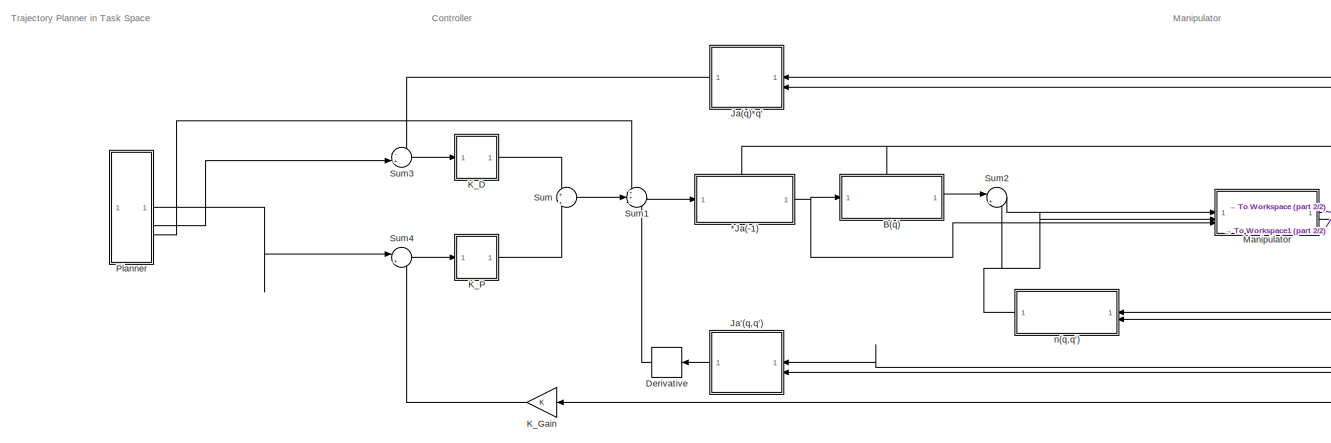
[diagram: root canvas - part 1/2, most of the canvas]
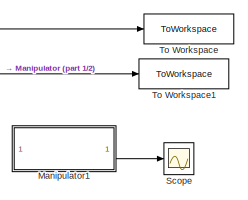
[diagram: root canvas - part 2/2, middle right region]
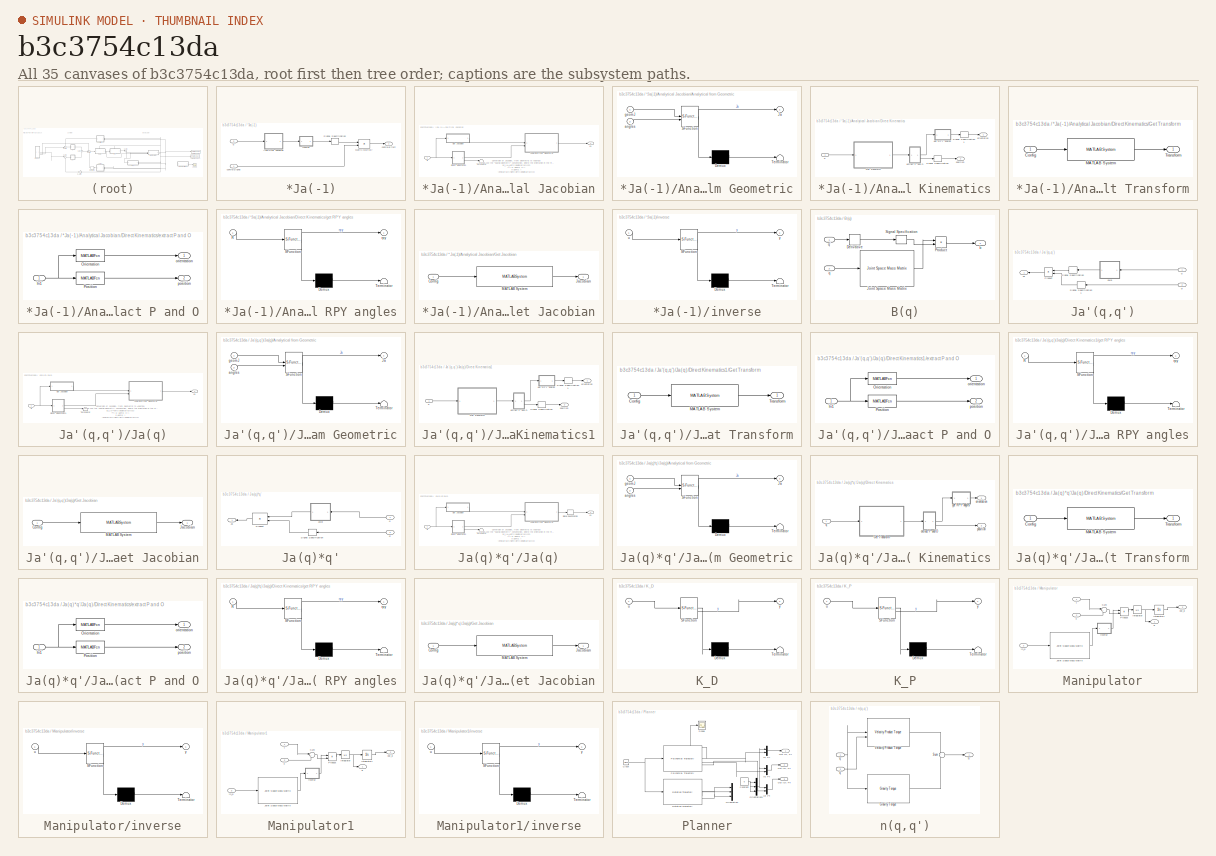
[diagram: thumbnail index - all 35 canvases of the model, root first then tree order]
MODEL slx_b3c3754c13da
KIND model
CONFIG AbsTol = auto
CONFIG EnableMultiTasking = off
CONFIG FixedStep = sampleTime
CONFIG MaxStep = auto
CONFIG MinStep = auto
CONFIG RelTol = 1e-3
CONFIG SampleTimeConstraint = Unconstrained
CONFIG SolverName = FixedStepAuto
CONFIG StartTime = 0.0
CONFIG StopTime = 10.0
BLOCK [SubSystem] *Ja(-1)
  PortSchema = {"entries":[{"content":{"sides":[{"content":{"connectorIds":["In1"]},"type":"ConnectorPlacement.EquallySpacedRectSide","uuid":"6181597d-d95a-4c94-8b0a-1b126e10fdbf"},{"content":{"connectorIds":["Out1"],"side":"RIGHT"},"type":"ConnectorPlacement.EquallySpacedRectSide","uuid":"10cd4102-ac71-40d2-b2d5-351b2662a651"},{"content":{"connectorIds":["In2"],"side":"TOP"},"type":"ConnectorPlacement.EquallySp...<+245ch>
BLOCK [SubSystem] *Ja(-1)/Analytical Jacobian
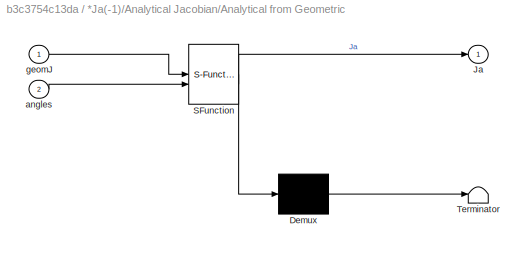
BLOCK [SubSystem] *Ja(-1)/Analytical Jacobian/Analytical from Geometric
  ErrorFcn = Stateflow.Translate.translate
  PermitHierarchicalResolution = ExplicitOnly
  SFBlockType = MATLAB Function
  TreatAsAtomicUnit = on
BLOCK [Demux] *Ja(-1)/Analytical Jacobian/Analytical from Geometric/ Demux 
  Outputs = 1
BLOCK [S-Function] *Ja(-1)/Analytical Jacobian/Analytical from Geometric/ SFunction 
  EnableBusSupport = on
  FunctionName = sf_sfun
  PortCounts = [2 2]
  SFcnIsStateOwnerBlock = off
  SFunctionDeploymentMode = off
  Tag = Stateflow S-Function 5
BLOCK [Terminator] *Ja(-1)/Analytical Jacobian/Analytical from Geometric/ Terminator 
BLOCK [Outport] *Ja(-1)/Analytical Jacobian/Analytical from Geometric/Ja
BLOCK [Inport] *Ja(-1)/Analytical Jacobian/Analytical from Geometric/angles
  Port = 2
BLOCK [Inport] *Ja(-1)/Analytical Jacobian/Analytical from Geometric/geomJ
BLOCK [SubSystem] *Ja(-1)/Analytical Jacobian/Direct Kinematics
BLOCK [SubSystem] *Ja(-1)/Analytical Jacobian/Direct Kinematics/Get Transform
  LibrarySourceBlock = robotmaniplib/Get Transform
BLOCK [Inport] *Ja(-1)/Analytical Jacobian/Direct Kinematics/Get Transform/Config
  PortDimensions = 6
BLOCK [MATLABSystem] *Ja(-1)/Analytical Jacobian/Direct Kinematics/Get Transform/MATLAB System
  MaskDisplay = disp('GetTransformBlock');\nport_label('input',1,'q');\nport_label('output',1,'tform');
  MaskType = robotics.slmanip.internal.block.GetTransformBlock
  SimulateUsing = Code generation
  SourceBodyName = SourceBody
  System = robotics.slmanip.internal.block.GetTransformBlock
  TargetBodyName = TargetBody
  TreeStruct = TreeStruct
BLOCK [Outport] *Ja(-1)/Analytical Jacobian/Direct Kinematics/Get Transform/Transform
  VectorParamsAs1DForOutWhenUnconnected = off
BLOCK [SignalSpecification] *Ja(-1)/Analytical Jacobian/Direct Kinematics/Signal Specification
  Dimensions = [3,1]
BLOCK [SignalSpecification] *Ja(-1)/Analytical Jacobian/Direct Kinematics/Signal Specification1
  Dimensions = [3,1]
BLOCK [SubSystem] *Ja(-1)/Analytical Jacobian/Direct Kinematics/extract P and O
BLOCK [Inport] *Ja(-1)/Analytical Jacobian/Direct Kinematics/extract P and O/In1
  NameLocation = top
BLOCK [MATLABFcn] *Ja(-1)/Analytical Jacobian/Direct Kinematics/extract P and O/Orientation
  MATLABFcn = tform2rotm
  Output1D = off
BLOCK [MATLABFcn] *Ja(-1)/Analytical Jacobian/Direct Kinematics/extract P and O/Position
  MATLABFcn = tform2trvec
BLOCK [Outport] *Ja(-1)/Analytical Jacobian/Direct Kinematics/extract P and O/orientation
  NameLocation = top
BLOCK [Outport] *Ja(-1)/Analytical Jacobian/Direct Kinematics/extract P and O/position
  NameLocation = top
  Port = 2
BLOCK [SubSystem] *Ja(-1)/Analytical Jacobian/Direct Kinematics/get RPY angles
  ErrorFcn = Stateflow.Translate.translate
  PermitHierarchicalResolution = ExplicitOnly
  SFBlockType = MATLAB Function
  TreatAsAtomicUnit = on
BLOCK [Demux] *Ja(-1)/Analytical Jacobian/Direct Kinematics/get RPY angles/ Demux 
  Outputs = 1
BLOCK [S-Function] *Ja(-1)/Analytical Jacobian/Direct Kinematics/get RPY angles/ SFunction 
  EnableBusSupport = on
  FunctionName = sf_sfun
  PortCounts = [1 2]
  SFcnIsStateOwnerBlock = off
  SFunctionDeploymentMode = off
  Tag = Stateflow S-Function 3
BLOCK [Terminator] *Ja(-1)/Analytical Jacobian/Direct Kinematics/get RPY angles/ Terminator 
BLOCK [Inport] *Ja(-1)/Analytical Jacobian/Direct Kinematics/get RPY angles/R
BLOCK [Outport] *Ja(-1)/Analytical Jacobian/Direct Kinematics/get RPY angles/rpy
BLOCK [Outport] *Ja(-1)/Analytical Jacobian/Direct Kinematics/orientation
  NameLocation = top
BLOCK [Outport] *Ja(-1)/Analytical Jacobian/Direct Kinematics/position
  Port = 2
BLOCK [Inport] *Ja(-1)/Analytical Jacobian/Direct Kinematics/q
BLOCK [SubSystem] *Ja(-1)/Analytical Jacobian/Get Jacobian
  LibrarySourceBlock = robotmaniplib/Get Jacobian
BLOCK [Inport] *Ja(-1)/Analytical Jacobian/Get Jacobian/Config
  PortDimensions = 6
BLOCK [Outport] *Ja(-1)/Analytical Jacobian/Get Jacobian/Jacobian
  VectorParamsAs1DForOutWhenUnconnected = off
BLOCK [MATLABSystem] *Ja(-1)/Analytical Jacobian/Get Jacobian/MATLAB System
  EEBodyName = EndEffector
  MaskDisplay = disp('GetJacobianBlock');\nport_label('input',1,'q');\nport_label('output',1,'jacobianMat');
  MaskType = robotics.slmanip.internal.block.GetJacobianBlock
  SimulateUsing = Code generation
  System = robotics.slmanip.internal.block.GetJacobianBlock
  TreeStruct = TreeStruct
BLOCK [Outport] *Ja(-1)/Analytical Jacobian/Ja
BLOCK [Terminator] *Ja(-1)/Analytical Jacobian/Terminator
BLOCK [Inport] *Ja(-1)/Analytical Jacobian/q
BLOCK [Product] *Ja(-1)/Matrix Multiply
  Multiplication = Matrix(*)
BLOCK [SignalSpecification] *Ja(-1)/Signal Specification
  Dimensions = [6,6]
BLOCK [Outport] *Ja(-1)/controlEffort
BLOCK [Inport] *Ja(-1)/controlSignal
BLOCK [SubSystem] *Ja(-1)/inverse
  ErrorFcn = Stateflow.Translate.translate
  PermitHierarchicalResolution = ExplicitOnly
  SFBlockType = MATLAB Function
  TreatAsAtomicUnit = on
BLOCK [Demux] *Ja(-1)/inverse/ Demux 
  Outputs = 1
BLOCK [S-Function] *Ja(-1)/inverse/ SFunction 
  EnableBusSupport = on
  FunctionName = sf_sfun
  PortCounts = [1 2]
  SFcnIsStateOwnerBlock = off
  SFunctionDeploymentMode = off
  Tag = Stateflow S-Function 2
BLOCK [Terminator] *Ja(-1)/inverse/ Terminator 
BLOCK [Inport] *Ja(-1)/inverse/u
BLOCK [Outport] *Ja(-1)/inverse/y
BLOCK [Inport] *Ja(-1)/q
  Port = 2
BLOCK [SubSystem] B(q)
  PortSchema = {"entries":[{"content":{"sides":[{"content":{"connectorIds":["In1"]},"type":"ConnectorPlacement.EquallySpacedRectSide","uuid":"6181597d-d95a-4c94-8b0a-1b126e10fdbf"},{"content":{"connectorIds":["Out1"],"side":"RIGHT"},"type":"ConnectorPlacement.EquallySpacedRectSide","uuid":"10cd4102-ac71-40d2-b2d5-351b2662a651"},{"content":{"connectorIds":["In2"],"side":"TOP"},"type":"ConnectorPlacement.EquallySp...<+245ch>
BLOCK [Derivative] B(q)/Derivative
BLOCK [Reference] B(q)/Joint Space Mass Matrix  REF=robotmaniplib/Joint Space Mass Matrix
  SourceBlock = robotmaniplib/Joint Space Mass Matrix
  SourceType = Joint Space Mass Matrix
BLOCK [Product] B(q)/Product
  Multiplication = Matrix(*)
BLOCK [SignalSpecification] B(q)/Signal Specification
  Dimensions = [6,1]
BLOCK [Outport] B(q)/b
BLOCK [Inport] B(q)/q
  Port = 2
BLOCK [Inport] B(q)/q'
BLOCK [Derivative] Derivative
BLOCK [SubSystem] Ja'(q,q')
BLOCK [Outport] Ja'(q,q')/Ja
BLOCK [SubSystem] Ja'(q,q')/Ja(q)
BLOCK [SubSystem] Ja'(q,q')/Ja(q)/Analytical from Geometric
  ErrorFcn = Stateflow.Translate.translate
  PermitHierarchicalResolution = ExplicitOnly
  SFBlockType = MATLAB Function
  TreatAsAtomicUnit = on
BLOCK [Demux] Ja'(q,q')/Ja(q)/Analytical from Geometric/ Demux 
  Outputs = 1
BLOCK [S-Function] Ja'(q,q')/Ja(q)/Analytical from Geometric/ SFunction 
  EnableBusSupport = on
  FunctionName = sf_sfun
  PortCounts = [2 2]
  SFcnIsStateOwnerBlock = off
  SFunctionDeploymentMode = off
  Tag = Stateflow S-Function 6
BLOCK [Terminator] Ja'(q,q')/Ja(q)/Analytical from Geometric/ Terminator 
BLOCK [Outport] Ja'(q,q')/Ja(q)/Analytical from Geometric/Ja
BLOCK [Inport] Ja'(q,q')/Ja(q)/Analytical from Geometric/angles
  Port = 2
BLOCK [Inport] Ja'(q,q')/Ja(q)/Analytical from Geometric/geomJ
BLOCK [SubSystem] Ja'(q,q')/Ja(q)/Direct Kinematics1
BLOCK [SubSystem] Ja'(q,q')/Ja(q)/Direct Kinematics1/Get Transform
  LibrarySourceBlock = robotmaniplib/Get Transform
BLOCK [Inport] Ja'(q,q')/Ja(q)/Direct Kinematics1/Get Transform/Config
  PortDimensions = 6
BLOCK [MATLABSystem] Ja'(q,q')/Ja(q)/Direct Kinematics1/Get Transform/MATLAB System
  MaskDisplay = disp('GetTransformBlock');\nport_label('input',1,'q');\nport_label('output',1,'tform');
  MaskType = robotics.slmanip.internal.block.GetTransformBlock
  SimulateUsing = Code generation
  SourceBodyName = SourceBody
  System = robotics.slmanip.internal.block.GetTransformBlock
  TargetBodyName = TargetBody
  TreeStruct = TreeStruct
BLOCK [Outport] Ja'(q,q')/Ja(q)/Direct Kinematics1/Get Transform/Transform
  VectorParamsAs1DForOutWhenUnconnected = off
BLOCK [SignalSpecification] Ja'(q,q')/Ja(q)/Direct Kinematics1/Signal Specification
  Dimensions = [3,1]
BLOCK [SignalSpecification] Ja'(q,q')/Ja(q)/Direct Kinematics1/Signal Specification1
  Dimensions = [3,1]
BLOCK [SubSystem] Ja'(q,q')/Ja(q)/Direct Kinematics1/extract P and O
BLOCK [Inport] Ja'(q,q')/Ja(q)/Direct Kinematics1/extract P and O/In1
  NameLocation = top
BLOCK [MATLABFcn] Ja'(q,q')/Ja(q)/Direct Kinematics1/extract P and O/Orientation
  MATLABFcn = tform2rotm
  Output1D = off
BLOCK [MATLABFcn] Ja'(q,q')/Ja(q)/Direct Kinematics1/extract P and O/Position
  MATLABFcn = tform2trvec
BLOCK [Outport] Ja'(q,q')/Ja(q)/Direct Kinematics1/extract P and O/orientation
  NameLocation = top
BLOCK [Outport] Ja'(q,q')/Ja(q)/Direct Kinematics1/extract P and O/position
  NameLocation = top
  Port = 2
BLOCK [SubSystem] Ja'(q,q')/Ja(q)/Direct Kinematics1/get RPY angles
  ErrorFcn = Stateflow.Translate.translate
  PermitHierarchicalResolution = ExplicitOnly
  SFBlockType = MATLAB Function
  TreatAsAtomicUnit = on
BLOCK [Demux] Ja'(q,q')/Ja(q)/Direct Kinematics1/get RPY angles/ Demux 
  Outputs = 1
BLOCK [S-Function] Ja'(q,q')/Ja(q)/Direct Kinematics1/get RPY angles/ SFunction 
  EnableBusSupport = on
  FunctionName = sf_sfun
  PortCounts = [1 2]
  SFcnIsStateOwnerBlock = off
  SFunctionDeploymentMode = off
  Tag = Stateflow S-Function 10
BLOCK [Terminator] Ja'(q,q')/Ja(q)/Direct Kinematics1/get RPY angles/ Terminator 
BLOCK [Inport] Ja'(q,q')/Ja(q)/Direct Kinematics1/get RPY angles/R
BLOCK [Outport] Ja'(q,q')/Ja(q)/Direct Kinematics1/get RPY angles/rpy
BLOCK [Outport] Ja'(q,q')/Ja(q)/Direct Kinematics1/orientation
  NameLocation = top
BLOCK [Outport] Ja'(q,q')/Ja(q)/Direct Kinematics1/position
  Port = 2
BLOCK [Inport] Ja'(q,q')/Ja(q)/Direct Kinematics1/q
BLOCK [SubSystem] Ja'(q,q')/Ja(q)/Get Jacobian
  LibrarySourceBlock = robotmaniplib/Get Jacobian
BLOCK [Inport] Ja'(q,q')/Ja(q)/Get Jacobian/Config
  PortDimensions = 6
BLOCK [Outport] Ja'(q,q')/Ja(q)/Get Jacobian/Jacobian
  VectorParamsAs1DForOutWhenUnconnected = off
BLOCK [MATLABSystem] Ja'(q,q')/Ja(q)/Get Jacobian/MATLAB System
  EEBodyName = EndEffector
  MaskDisplay = disp('GetJacobianBlock');\nport_label('input',1,'q');\nport_label('output',1,'jacobianMat');
  MaskType = robotics.slmanip.internal.block.GetJacobianBlock
  SimulateUsing = Code generation
  System = robotics.slmanip.internal.block.GetJacobianBlock
  TreeStruct = TreeStruct
BLOCK [Outport] Ja'(q,q')/Ja(q)/Ja
BLOCK [Terminator] Ja'(q,q')/Ja(q)/Terminator
BLOCK [Inport] Ja'(q,q')/Ja(q)/q
BLOCK [Product] Ja'(q,q')/Product
  Multiplication = Matrix(*)
BLOCK [SignalSpecification] Ja'(q,q')/Signal Specification
  Dimensions = [6,6]
  NameLocation = top
BLOCK [SignalSpecification] Ja'(q,q')/Signal Specification1
  Dimensions = [6,1]
  NameLocation = top
BLOCK [Inport] Ja'(q,q')/q
BLOCK [Inport] Ja'(q,q')/q'
  Port = 2
BLOCK [SubSystem] Ja(q)*q'
BLOCK [Outport] Ja(q)*q'/Ja
BLOCK [SubSystem] Ja(q)*q'/Ja(q)
BLOCK [SubSystem] Ja(q)*q'/Ja(q)/Analytical from Geometric
  ErrorFcn = Stateflow.Translate.translate
  PermitHierarchicalResolution = ExplicitOnly
  SFBlockType = MATLAB Function
  TreatAsAtomicUnit = on
BLOCK [Demux] Ja(q)*q'/Ja(q)/Analytical from Geometric/ Demux 
  Outputs = 1
BLOCK [S-Function] Ja(q)*q'/Ja(q)/Analytical from Geometric/ SFunction 
  EnableBusSupport = on
  FunctionName = sf_sfun
  PortCounts = [2 2]
  SFcnIsStateOwnerBlock = off
  SFunctionDeploymentMode = off
  Tag = Stateflow S-Function 1
BLOCK [Terminator] Ja(q)*q'/Ja(q)/Analytical from Geometric/ Terminator 
BLOCK [Outport] Ja(q)*q'/Ja(q)/Analytical from Geometric/Ja
BLOCK [Inport] Ja(q)*q'/Ja(q)/Analytical from Geometric/angles
  Port = 2
BLOCK [Inport] Ja(q)*q'/Ja(q)/Analytical from Geometric/geomJ
BLOCK [SubSystem] Ja(q)*q'/Ja(q)/Direct Kinematics
BLOCK [SubSystem] Ja(q)*q'/Ja(q)/Direct Kinematics/Get Transform
  LibrarySourceBlock = robotmaniplib/Get Transform
BLOCK [Inport] Ja(q)*q'/Ja(q)/Direct Kinematics/Get Transform/Config
  PortDimensions = 6
BLOCK [MATLABSystem] Ja(q)*q'/Ja(q)/Direct Kinematics/Get Transform/MATLAB System
  MaskDisplay = disp('GetTransformBlock');\nport_label('input',1,'q');\nport_label('output',1,'tform');
  MaskType = robotics.slmanip.internal.block.GetTransformBlock
  SimulateUsing = Code generation
  SourceBodyName = SourceBody
  System = robotics.slmanip.internal.block.GetTransformBlock
  TargetBodyName = TargetBody
  TreeStruct = TreeStruct
BLOCK [Outport] Ja(q)*q'/Ja(q)/Direct Kinematics/Get Transform/Transform
  VectorParamsAs1DForOutWhenUnconnected = off
BLOCK [SubSystem] Ja(q)*q'/Ja(q)/Direct Kinematics/extract P and O
BLOCK [Inport] Ja(q)*q'/Ja(q)/Direct Kinematics/extract P and O/In1
  NameLocation = top
BLOCK [MATLABFcn] Ja(q)*q'/Ja(q)/Direct Kinematics/extract P and O/Orientation
  MATLABFcn = tform2rotm
  Output1D = off
BLOCK [MATLABFcn] Ja(q)*q'/Ja(q)/Direct Kinematics/extract P and O/Position
  MATLABFcn = tform2trvec
BLOCK [Outport] Ja(q)*q'/Ja(q)/Direct Kinematics/extract P and O/orientation
  NameLocation = top
BLOCK [Outport] Ja(q)*q'/Ja(q)/Direct Kinematics/extract P and O/position
  NameLocation = top
  Port = 2
BLOCK [SubSystem] Ja(q)*q'/Ja(q)/Direct Kinematics/get RPY angles
  ErrorFcn = Stateflow.Translate.translate
  PermitHierarchicalResolution = ExplicitOnly
  SFBlockType = MATLAB Function
  TreatAsAtomicUnit = on
BLOCK [Demux] Ja(q)*q'/Ja(q)/Direct Kinematics/get RPY angles/ Demux 
  Outputs = 1
BLOCK [S-Function] Ja(q)*q'/Ja(q)/Direct Kinematics/get RPY angles/ SFunction 
  EnableBusSupport = on
  FunctionName = sf_sfun
  PortCounts = [1 2]
  SFcnIsStateOwnerBlock = off
  SFunctionDeploymentMode = off
  Tag = Stateflow S-Function 4
BLOCK [Terminator] Ja(q)*q'/Ja(q)/Direct Kinematics/get RPY angles/ Terminator 
BLOCK [Inport] Ja(q)*q'/Ja(q)/Direct Kinematics/get RPY angles/R
BLOCK [Outport] Ja(q)*q'/Ja(q)/Direct Kinematics/get RPY angles/rpy
BLOCK [Outport] Ja(q)*q'/Ja(q)/Direct Kinematics/orientation
  NameLocation = top
BLOCK [Outport] Ja(q)*q'/Ja(q)/Direct Kinematics/position
  Port = 2
BLOCK [Inport] Ja(q)*q'/Ja(q)/Direct Kinematics/q
BLOCK [SubSystem] Ja(q)*q'/Ja(q)/Get Jacobian
  LibrarySourceBlock = robotmaniplib/Get Jacobian
BLOCK [Inport] Ja(q)*q'/Ja(q)/Get Jacobian/Config
  PortDimensions = 6
BLOCK [Outport] Ja(q)*q'/Ja(q)/Get Jacobian/Jacobian
  VectorParamsAs1DForOutWhenUnconnected = off
BLOCK [MATLABSystem] Ja(q)*q'/Ja(q)/Get Jacobian/MATLAB System
  EEBodyName = EndEffector
  MaskDisplay = disp('GetJacobianBlock');\nport_label('input',1,'q');\nport_label('output',1,'jacobianMat');
  MaskType = robotics.slmanip.internal.block.GetJacobianBlock
  SimulateUsing = Code generation
  System = robotics.slmanip.internal.block.GetJacobianBlock
  TreeStruct = TreeStruct
BLOCK [Outport] Ja(q)*q'/Ja(q)/Ja
BLOCK [SignalSpecification] Ja(q)*q'/Ja(q)/Signal Specification
  Dimensions = [6,6]
BLOCK [Terminator] Ja(q)*q'/Ja(q)/Terminator
BLOCK [Inport] Ja(q)*q'/Ja(q)/q
BLOCK [Product] Ja(q)*q'/Product
  Multiplication = Matrix(*)
BLOCK [SignalSpecification] Ja(q)*q'/Signal Specification
  Dimensions = [6,1]
BLOCK [Inport] Ja(q)*q'/q
BLOCK [Inport] Ja(q)*q'/q'
  Port = 2
BLOCK [SubSystem] K_D
  ErrorFcn = Stateflow.Translate.translate
  PermitHierarchicalResolution = ExplicitOnly
  SFBlockType = MATLAB Function
  TreatAsAtomicUnit = on
BLOCK [Demux] K_D/ Demux 
  Outputs = 1
BLOCK [S-Function] K_D/ SFunction 
  EnableBusSupport = on
  FunctionName = sf_sfun
  PortCounts = [1 2]
  SFcnIsStateOwnerBlock = off
  SFunctionDeploymentMode = off
  Tag = Stateflow S-Function 8
BLOCK [Terminator] K_D/ Terminator 
BLOCK [Inport] K_D/u
BLOCK [Outport] K_D/y
BLOCK [Gain] K_Gain
BLOCK [SubSystem] K_P
  ErrorFcn = Stateflow.Translate.translate
  PermitHierarchicalResolution = ExplicitOnly
  SFBlockType = MATLAB Function
  TreatAsAtomicUnit = on
BLOCK [Demux] K_P/ Demux 
  Outputs = 1
BLOCK [S-Function] K_P/ SFunction 
  EnableBusSupport = on
  FunctionName = sf_sfun
  PortCounts = [1 2]
  SFcnIsStateOwnerBlock = off
  SFunctionDeploymentMode = off
  Tag = Stateflow S-Function 9
BLOCK [Terminator] K_P/ Terminator 
BLOCK [Inport] K_P/u
BLOCK [Outport] K_P/y
BLOCK [SubSystem] Manipulator
BLOCK [Integrator] Manipulator/Integrator
  InitialCondition = initial
BLOCK [Integrator] Manipulator/Integrator1
  InitialCondition = initialPos
BLOCK [Reference] Manipulator/Joint Space Mass Matrix  REF=robotmaniplib/Joint Space Mass Matrix
  SourceBlock = robotmaniplib/Joint Space Mass Matrix
  SourceType = Joint Space Mass Matrix
BLOCK [Product] Manipulator/Product
  Multiplication = Matrix(*)
BLOCK [Sum] Manipulator/Sum
  Inputs = |+-
BLOCK [Inport] Manipulator/in_q
  Port = 3
BLOCK [SubSystem] Manipulator/inverse
  ErrorFcn = Stateflow.Translate.translate
  PermitHierarchicalResolution = ExplicitOnly
  SFBlockType = MATLAB Function
  TreatAsAtomicUnit = on
BLOCK [Demux] Manipulator/inverse/ Demux 
  Outputs = 1
BLOCK [S-Function] Manipulator/inverse/ SFunction 
  EnableBusSupport = on
  FunctionName = sf_sfun
  PortCounts = [1 2]
  SFcnIsStateOwnerBlock = off
  SFunctionDeploymentMode = off
  Tag = Stateflow S-Function 7
BLOCK [Terminator] Manipulator/inverse/ Terminator 
BLOCK [Inport] Manipulator/inverse/u
BLOCK [Outport] Manipulator/inverse/y
BLOCK [Inport] Manipulator/n
  Port = 2
BLOCK [Outport] Manipulator/out_q
  Port = 2
BLOCK [Outport] Manipulator/q'
BLOCK [Inport] Manipulator/t
BLOCK [SubSystem] Manipulator1
  Commented = on
BLOCK [Integrator] Manipulator1/Integrator
  InitialCondition = initial
BLOCK [Integrator] Manipulator1/Integrator1
  InitialCondition = initialPos
BLOCK [Reference] Manipulator1/Joint Space Mass Matrix  REF=robotmaniplib/Joint Space Mass Matrix
  SourceBlock = robotmaniplib/Joint Space Mass Matrix
  SourceType = Joint Space Mass Matrix
BLOCK [Product] Manipulator1/Product
  Multiplication = Matrix(*)
BLOCK [Sum] Manipulator1/Sum
  Inputs = |+-
BLOCK [Inport] Manipulator1/in_q
  Port = 3
BLOCK [SubSystem] Manipulator1/inverse
  ErrorFcn = Stateflow.Translate.translate
  PermitHierarchicalResolution = ExplicitOnly
  SFBlockType = MATLAB Function
  TreatAsAtomicUnit = on
BLOCK [Demux] Manipulator1/inverse/ Demux 
  Outputs = 1
BLOCK [S-Function] Manipulator1/inverse/ SFunction 
  EnableBusSupport = on
  FunctionName = sf_sfun
  PortCounts = [1 2]
  SFcnIsStateOwnerBlock = off
  SFunctionDeploymentMode = off
  Tag = Stateflow S-Function 11
BLOCK [Terminator] Manipulator1/inverse/ Terminator 
BLOCK [Inport] Manipulator1/inverse/u
BLOCK [Outport] Manipulator1/inverse/y
BLOCK [Inport] Manipulator1/n
  Port = 2
BLOCK [Outport] Manipulator1/out_q
  Port = 2
BLOCK [Outport] Manipulator1/q'
BLOCK [Inport] Manipulator1/t
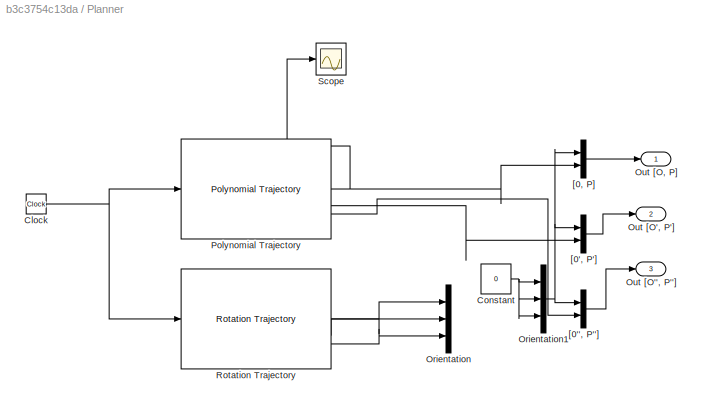
BLOCK [SubSystem] Planner
BLOCK [Clock] Planner/Clock
BLOCK [Constant] Planner/Constant
  Value = 0
BLOCK [Mux] Planner/Orientation
  DisplayOption = bar
  Inputs = 3
BLOCK [Mux] Planner/Orientation1
  DisplayOption = bar
  Inputs = 3
BLOCK [Outport] Planner/Out [O'', P'']
  Port = 3
BLOCK [Outport] Planner/Out [O', P']
  Port = 2
BLOCK [Outport] Planner/Out [O, P]
BLOCK [Reference] Planner/Polynomial Trajectory  REF=robotcorelib/Polynomial Trajectory
  LibrarySourceBlock = robotutilslib/Polynomial Trajectory
  SourceBlock = robotcorelib/Polynomial Trajectory
  SourceType = robotics.slcore.internal.block.PolyTrajSys
BLOCK [Reference] Planner/Rotation Trajectory  REF=robotcorelib/Rotation Trajectory
  LibrarySourceBlock = robotutilslib/Rotation Trajectory
  SourceBlock = robotcorelib/Rotation Trajectory
  SourceType = robotics.slcore.internal.block.RotTrajSys
BLOCK [Scope] Planner/Scope
  Floating = off
  NumInputPorts = 1
  ScopeSpecificationString = Simulink.scopes.TimeScopeBlockCfg('CurrentConfiguration', extmgr.ConfigurationSet(extmgr.Configuration('Core','General UI',true),extmgr.Configuration('Core','Source UI',true),extmgr.Configuration('Sources','WiredSimulink',true),extmgr.Configuration('Visuals','Time Domain',true,'SerializedDisplays',{struct('MinYLimReal','-1.75','MaxYLimReal','5.75','YLabelReal','','MinYLimMag','0.00000','MaxYLimMag...<+1385ch>
BLOCK [Mux] Planner/[0'', P'']
  DisplayOption = bar
  Inputs = 2
BLOCK [Mux] Planner/[0', P']
  DisplayOption = bar
  Inputs = 2
BLOCK [Mux] Planner/[0, P]
  DisplayOption = bar
  Inputs = 2
BLOCK [Scope] Scope
  Commented = on
  Floating = off
  NumInputPorts = 1
  ScopeSpecificationString = Simulink.scopes.TimeScopeBlockCfg('CurrentConfiguration', extmgr.ConfigurationSet(extmgr.Configuration('Core','General UI',true),extmgr.Configuration('Core','Source UI',true),extmgr.Configuration('Sources','WiredSimulink',true),extmgr.Configuration('Visuals','Time Domain',true,'SerializedDisplays',{struct('MinYLimReal','-1.25','MaxYLimReal','11.25','YLabelReal','','MinYLimMag','0.00000','MaxYLimMa...<+1443ch>
BLOCK [Sum] Sum
  Inputs = +|+
BLOCK [Sum] Sum1
  Inputs = ++-
BLOCK [Sum] Sum2
  Inputs = |++
BLOCK [Sum] Sum3
  Inputs = -+|
BLOCK [Sum] Sum4
  Inputs = |+-
BLOCK [ToWorkspace] To Workspace
  FixptAsFi = on
  MaxDataPoints = inf
  SampleTime = -1
  VariableName = q_dot
BLOCK [ToWorkspace] To Workspace1
  FixptAsFi = on
  MaxDataPoints = inf
  SampleTime = -1
  VariableName = q
BLOCK [SubSystem] n(q,q')
BLOCK [Reference] n(q,q')/Gravity Torque  REF=robotmaniplib/Gravity Torque
  SourceBlock = robotmaniplib/Gravity Torque
  SourceType = Gravity Torque
BLOCK [Sum] n(q,q')/Sum
  Inputs = +|+
BLOCK [Reference] n(q,q')/Velocity Product Torque  REF=robotmaniplib/Velocity Product Torque
  SourceBlock = robotmaniplib/Velocity Product Torque
  SourceType = Velocity Product Torque
BLOCK [Outport] n(q,q')/n
BLOCK [Inport] n(q,q')/q
BLOCK [Inport] n(q,q')/q'
  Port = 2
ANNOTATION (root): Controller
ANNOTATION (root): Manipulator
ANNOTATION (root): Trajectory Planner in Task Space
ANNOTATION *Ja(-1)/Analytical Jacobian: Conversion of Jacobian, from Geometric to Analytical Matlab use the "Spatial Geometry" convenction, where the orientation in the first three rows instead of the last three rows. So we use: $J_{A}=\left[\begin{array}{cc} T^{-1} & 0 \\ 0 & I \end{array}\right]\left[\begin{array}{c} J_{O} \\ J_{P} \end{array}\right]=\left[\begin{array}{l} T^{-1} J_{O} \\ 0 \end{array}\right]+\left[\begin{array}{c} 0\...<+525ch>
ANNOTATION Ja'(q,q')/Ja(q): Conversion of Jacobian, from Geometric to Analytical Matlab use the "Spatial Geometry" convenction, where the orientation in the first three rows instead of the last three rows. So we use: $J_{A}=\left[\begin{array}{cc} T^{-1} & 0 \\ 0 & I \end{array}\right]\left[\begin{array}{c} J_{O} \\ J_{P} \end{array}\right]=\left[\begin{array}{l} T^{-1} J_{O} \\ 0 \end{array}\right]+\left[\begin{array}{c} 0\...<+525ch>
ANNOTATION Ja(q)*q'/Ja(q): Conversion of Jacobian, from Geometric to Analytical Matlab use the "Spatial Geometry" convenction, where the orientation in the first three rows instead of the last three rows. So we use: $J_{A}=\left[\begin{array}{cc} T^{-1} & 0 \\ 0 & I \end{array}\right]\left[\begin{array}{c} J_{O} \\ J_{P} \end{array}\right]=\left[\begin{array}{l} T^{-1} J_{O} \\ 0 \end{array}\right]+\left[\begin{array}{c} 0\...<+525ch>
LINE *Ja(-1)/Analytical Jacobian/Analytical from Geometric:1 -> *Ja(-1)/Analytical Jacobian/Ja:1
LINE *Ja(-1)/Analytical Jacobian/Direct Kinematics/Get Transform:1 -> *Ja(-1)/Analytical Jacobian/Direct Kinematics/extract P and O:1
LINE *Ja(-1)/Analytical Jacobian/Direct Kinematics/Signal Specification1:1 -> *Ja(-1)/Analytical Jacobian/Direct Kinematics/orientation:1
LINE *Ja(-1)/Analytical Jacobian/Direct Kinematics/Signal Specification:1 -> *Ja(-1)/Analytical Jacobian/Direct Kinematics/position:1
NET *Ja(-1)/Analytical Jacobian/Direct Kinematics/extract P and O/In1:1 -> *Ja(-1)/Analytical Jacobian/Direct Kinematics/extract P and O/Orientation:1, *Ja(-1)/Analytical Jacobian/Direct Kinematics/extract P and O/Position:1
LINE *Ja(-1)/Analytical Jacobian/Direct Kinematics/extract P and O/Orientation:1 -> *Ja(-1)/Analytical Jacobian/Direct Kinematics/extract P and O/orientation:1
LINE *Ja(-1)/Analytical Jacobian/Direct Kinematics/extract P and O/Position:1 -> *Ja(-1)/Analytical Jacobian/Direct Kinematics/extract P and O/position:1
LINE *Ja(-1)/Analytical Jacobian/Direct Kinematics/extract P and O:1 -> *Ja(-1)/Analytical Jacobian/Direct Kinematics/get RPY angles:1
LINE *Ja(-1)/Analytical Jacobian/Direct Kinematics/extract P and O:2 -> *Ja(-1)/Analytical Jacobian/Direct Kinematics/Signal Specification:1
LINE *Ja(-1)/Analytical Jacobian/Direct Kinematics/get RPY angles:1 -> *Ja(-1)/Analytical Jacobian/Direct Kinematics/Signal Specification1:1
LINE *Ja(-1)/Analytical Jacobian/Direct Kinematics/q:1 -> *Ja(-1)/Analytical Jacobian/Direct Kinematics/Get Transform:1
LINE *Ja(-1)/Analytical Jacobian/Direct Kinematics:1 -> *Ja(-1)/Analytical Jacobian/Analytical from Geometric:2
LINE *Ja(-1)/Analytical Jacobian/Direct Kinematics:2 -> *Ja(-1)/Analytical Jacobian/Terminator:1
LINE *Ja(-1)/Analytical Jacobian/Get Jacobian:1 -> *Ja(-1)/Analytical Jacobian/Analytical from Geometric:1
NET *Ja(-1)/Analytical Jacobian/q:1 -> *Ja(-1)/Analytical Jacobian/Direct Kinematics:1, *Ja(-1)/Analytical Jacobian/Get Jacobian:1
LINE *Ja(-1)/Analytical Jacobian:1 -> *Ja(-1)/inverse:1
LINE *Ja(-1)/Matrix Multiply:1 -> *Ja(-1)/controlEffort:1
LINE *Ja(-1)/Signal Specification:1 -> *Ja(-1)/Matrix Multiply:1
LINE *Ja(-1)/controlSignal:1 -> *Ja(-1)/Matrix Multiply:2
LINE *Ja(-1)/inverse:1 -> *Ja(-1)/Signal Specification:1
LINE *Ja(-1)/q:1 -> *Ja(-1)/Analytical Jacobian:1
NET *Ja(-1):1 -> B(q):1, Manipulator:3
LINE B(q)/Derivative:1 -> B(q)/Signal Specification:1
LINE B(q)/Joint Space Mass Matrix:1 -> B(q)/Product:1
LINE B(q)/Product:1 -> B(q)/b:1
LINE B(q)/Signal Specification:1 -> B(q)/Product:2
LINE B(q)/q':1 -> B(q)/Derivative:1
LINE B(q)/q:1 -> B(q)/Joint Space Mass Matrix:1
LINE B(q):1 -> Sum2:1
LINE Derivative:1 -> Sum1:3
LINE Ja'(q,q')/Ja(q)/Analytical from Geometric:1 -> Ja'(q,q')/Ja(q)/Ja:1
LINE Ja'(q,q')/Ja(q)/Direct Kinematics1/Get Transform:1 -> Ja'(q,q')/Ja(q)/Direct Kinematics1/extract P and O:1
LINE Ja'(q,q')/Ja(q)/Direct Kinematics1/Signal Specification1:1 -> Ja'(q,q')/Ja(q)/Direct Kinematics1/orientation:1
LINE Ja'(q,q')/Ja(q)/Direct Kinematics1/Signal Specification:1 -> Ja'(q,q')/Ja(q)/Direct Kinematics1/position:1
NET Ja'(q,q')/Ja(q)/Direct Kinematics1/extract P and O/In1:1 -> Ja'(q,q')/Ja(q)/Direct Kinematics1/extract P and O/Orientation:1, Ja'(q,q')/Ja(q)/Direct Kinematics1/extract P and O/Position:1
LINE Ja'(q,q')/Ja(q)/Direct Kinematics1/extract P and O/Orientation:1 -> Ja'(q,q')/Ja(q)/Direct Kinematics1/extract P and O/orientation:1
LINE Ja'(q,q')/Ja(q)/Direct Kinematics1/extract P and O/Position:1 -> Ja'(q,q')/Ja(q)/Direct Kinematics1/extract P and O/position:1
LINE Ja'(q,q')/Ja(q)/Direct Kinematics1/extract P and O:1 -> Ja'(q,q')/Ja(q)/Direct Kinematics1/get RPY angles:1
LINE Ja'(q,q')/Ja(q)/Direct Kinematics1/extract P and O:2 -> Ja'(q,q')/Ja(q)/Direct Kinematics1/Signal Specification:1
LINE Ja'(q,q')/Ja(q)/Direct Kinematics1/get RPY angles:1 -> Ja'(q,q')/Ja(q)/Direct Kinematics1/Signal Specification1:1
LINE Ja'(q,q')/Ja(q)/Direct Kinematics1/q:1 -> Ja'(q,q')/Ja(q)/Direct Kinematics1/Get Transform:1
LINE Ja'(q,q')/Ja(q)/Direct Kinematics1:1 -> Ja'(q,q')/Ja(q)/Analytical from Geometric:2
LINE Ja'(q,q')/Ja(q)/Direct Kinematics1:2 -> Ja'(q,q')/Ja(q)/Terminator:1
LINE Ja'(q,q')/Ja(q)/Get Jacobian:1 -> Ja'(q,q')/Ja(q)/Analytical from Geometric:1
NET Ja'(q,q')/Ja(q)/q:1 -> Ja'(q,q')/Ja(q)/Direct Kinematics1:1, Ja'(q,q')/Ja(q)/Get Jacobian:1
LINE Ja'(q,q')/Ja(q):1 -> Ja'(q,q')/Signal Specification:1
LINE Ja'(q,q')/Product:1 -> Ja'(q,q')/Ja:1
LINE Ja'(q,q')/Signal Specification1:1 -> Ja'(q,q')/Product:2
LINE Ja'(q,q')/Signal Specification:1 -> Ja'(q,q')/Product:1
LINE Ja'(q,q')/q':1 -> Ja'(q,q')/Signal Specification1:1
LINE Ja'(q,q')/q:1 -> Ja'(q,q')/Ja(q):1
LINE Ja'(q,q'):1 -> Derivative:1
LINE Ja(q)*q'/Ja(q)/Analytical from Geometric:1 -> Ja(q)*q'/Ja(q)/Signal Specification:1
LINE Ja(q)*q'/Ja(q)/Direct Kinematics/Get Transform:1 -> Ja(q)*q'/Ja(q)/Direct Kinematics/extract P and O:1
NET Ja(q)*q'/Ja(q)/Direct Kinematics/extract P and O/In1:1 -> Ja(q)*q'/Ja(q)/Direct Kinematics/extract P and O/Orientation:1, Ja(q)*q'/Ja(q)/Direct Kinematics/extract P and O/Position:1
LINE Ja(q)*q'/Ja(q)/Direct Kinematics/extract P and O/Orientation:1 -> Ja(q)*q'/Ja(q)/Direct Kinematics/extract P and O/orientation:1
LINE Ja(q)*q'/Ja(q)/Direct Kinematics/extract P and O/Position:1 -> Ja(q)*q'/Ja(q)/Direct Kinematics/extract P and O/position:1
LINE Ja(q)*q'/Ja(q)/Direct Kinematics/extract P and O:1 -> Ja(q)*q'/Ja(q)/Direct Kinematics/get RPY angles:1
LINE Ja(q)*q'/Ja(q)/Direct Kinematics/extract P and O:2 -> Ja(q)*q'/Ja(q)/Direct Kinematics/position:1
LINE Ja(q)*q'/Ja(q)/Direct Kinematics/get RPY angles:1 -> Ja(q)*q'/Ja(q)/Direct Kinematics/orientation:1
LINE Ja(q)*q'/Ja(q)/Direct Kinematics/q:1 -> Ja(q)*q'/Ja(q)/Direct Kinematics/Get Transform:1
LINE Ja(q)*q'/Ja(q)/Direct Kinematics:1 -> Ja(q)*q'/Ja(q)/Analytical from Geometric:2
LINE Ja(q)*q'/Ja(q)/Direct Kinematics:2 -> Ja(q)*q'/Ja(q)/Terminator:1
LINE Ja(q)*q'/Ja(q)/Get Jacobian:1 -> Ja(q)*q'/Ja(q)/Analytical from Geometric:1
LINE Ja(q)*q'/Ja(q)/Signal Specification:1 -> Ja(q)*q'/Ja(q)/Ja:1
NET Ja(q)*q'/Ja(q)/q:1 -> Ja(q)*q'/Ja(q)/Direct Kinematics:1, Ja(q)*q'/Ja(q)/Get Jacobian:1
LINE Ja(q)*q'/Ja(q):1 -> Ja(q)*q'/Product:1
LINE Ja(q)*q'/Product:1 -> Ja(q)*q'/Ja:1
LINE Ja(q)*q'/Signal Specification:1 -> Ja(q)*q'/Product:2
LINE Ja(q)*q'/q':1 -> Ja(q)*q'/Signal Specification:1
LINE Ja(q)*q'/q:1 -> Ja(q)*q'/Ja(q):1
LINE Ja(q)*q':1 -> Sum3:1
LINE K_D:1 -> Sum:1
LINE K_Gain:1 -> Sum4:2
LINE K_P:1 -> Sum:2
LINE Manipulator/Integrator1:1 -> Manipulator/out_q:1
NET Manipulator/Integrator:1 -> Manipulator/Integrator1:1, Manipulator/q':1
LINE Manipulator/Joint Space Mass Matrix:1 -> Manipulator/inverse:1
LINE Manipulator/Product:1 -> Manipulator/Integrator:1
LINE Manipulator/Sum:1 -> Manipulator/Product:2
LINE Manipulator/in_q:1 -> Manipulator/Joint Space Mass Matrix:1
LINE Manipulator/inverse:1 -> Manipulator/Product:1
LINE Manipulator/n:1 -> Manipulator/Sum:2
LINE Manipulator/t:1 -> Manipulator/Sum:1
LINE Manipulator1/Integrator1:1 -> Manipulator1/out_q:1
NET Manipulator1/Integrator:1 -> Manipulator1/Integrator1:1, Manipulator1/q':1
LINE Manipulator1/Joint Space Mass Matrix:1 -> Manipulator1/inverse:1
LINE Manipulator1/Product:1 -> Manipulator1/Integrator:1
LINE Manipulator1/Sum:1 -> Manipulator1/Product:2
LINE Manipulator1/in_q:1 -> Manipulator1/Joint Space Mass Matrix:1
LINE Manipulator1/inverse:1 -> Manipulator1/Product:1
LINE Manipulator1/n:1 -> Manipulator1/Sum:2
LINE Manipulator1/t:1 -> Manipulator1/Sum:1
LINE Manipulator1:2 -> Scope:1
NET Manipulator:1 -> Ja'(q,q'):2, Ja(q)*q':2, To Workspace:1, n(q,q'):2
NET Manipulator:2 -> *Ja(-1):2, B(q):2, Ja'(q,q'):1, Ja(q)*q':1, K_Gain:1, To Workspace1:1, n(q,q'):1
NET Planner/Clock:1 -> Planner/Polynomial Trajectory:1, Planner/Rotation Trajectory:1
NET Planner/Constant:1 -> Planner/Orientation1:1, Planner/Orientation1:2, Planner/Orientation1:3
NET Planner/Orientation1:1 -> Planner/[0'', P'']:1, Planner/[0', P']:1, Planner/[0, P]:1
NET Planner/Polynomial Trajectory:1 -> Planner/Scope:1, Planner/[0, P]:2
LINE Planner/Polynomial Trajectory:2 -> Planner/[0', P']:2
LINE Planner/Polynomial Trajectory:3 -> Planner/[0'', P'']:2
LINE Planner/Rotation Trajectory:1 -> Planner/Orientation:1
LINE Planner/Rotation Trajectory:2 -> Planner/Orientation:2
LINE Planner/Rotation Trajectory:3 -> Planner/Orientation:3
LINE Planner/[0'', P'']:1 -> Planner/Out [O'', P'']:1
LINE Planner/[0', P']:1 -> Planner/Out [O', P']:1
LINE Planner/[0, P]:1 -> Planner/Out [O, P]:1
LINE Planner:1 -> Sum4:1
LINE Planner:2 -> Sum3:2
LINE Planner:3 -> Sum1:1
LINE Sum1:1 -> *Ja(-1):1
LINE Sum2:1 -> Manipulator:1
LINE Sum3:1 -> K_D:1
LINE Sum4:1 -> K_P:1
LINE Sum:1 -> Sum1:2
LINE n(q,q')/Gravity Torque:1 -> n(q,q')/Sum:2
LINE n(q,q')/Sum:1 -> n(q,q')/n:1
LINE n(q,q')/Velocity Product Torque:1 -> n(q,q')/Sum:1
LINE n(q,q')/q':1 -> n(q,q')/Velocity Product Torque:2
NET n(q,q')/q:1 -> n(q,q')/Gravity Torque:1, n(q,q')/Velocity Product Torque:1
NET n(q,q'):1 -> Manipulator:2, Sum2:2
note: NET lines group one-source signal fan-out (src -> all destinations, sorted); 1:1 wires keep LINE
CHART *Ja(-1)/inverse states=1 transitions=1
  STATE_LABEL 'eML_blk_kernel()'
  STATE_LABEL 'SCRIPT:\nfunction y = fcn(u)\n\ny = inv(u);\n'
CHART *Ja(-1)/Analytical Jacobian/Direct Kinematics/get RPY angles states=1 transitions=1
  STATE_LABEL 'eML_blk_kernel()'
  STATE_LABEL "SCRIPT:\nfunction rpy = rpyWrap(R)\n%rpy = getRPYanglesFromR(R);\n[rpy, ~] = eulerInverseProblem(R,'zyx','current');\n"
CHART Ja(q)*q'/Ja(q)/Direct Kinematics/get RPY angles states=1 transitions=1
  STATE_LABEL 'eML_blk_kernel()'
  STATE_LABEL "SCRIPT:\nfunction rpy = rpyWrap(R)\n%rpy = getRPYanglesFromR(R);\n[rpy, ~] = eulerInverseProblem(R,'zyx','current');\n"
CHART *Ja(-1)/Analytical Jacobian/Analytical from Geometric states=1 transitions=1
  STATE_LABEL 'eML_blk_kernel()'
  STATE_LABEL 'SCRIPT:\nfunction Ja = JacobAnFromGeomWrapper(geomJ,angles)\n% For T^-1 matrix using RPY i.e., z(r) y(p) x(y) wrt to the current frame\n\nT = rpy2Tmatrix(angles);\n\nTinv = inv(T);\n\n% Following matlab convention (Jo is on top of Jp)\nJa = [Tinv,zeros(3);zeros(3),eye(3)] * geomJ;\n\n% In standard convention one would have:\n% analytJ = [eye(3),zeros(3);zeros(3),Tinv] * geomJ;\n\n'  <repeated x3 — deduplicated; at blocks: Analytical from Geometric>
CHART Ja'(q,q')/Ja(q)/Analytical from Geometric states=1 transitions=1
  STATE_LABEL 'eML_blk_kernel()'
CHART Manipulator/inverse states=1 transitions=1
  STATE_LABEL 'eML_blk_kernel()'
  STATE_LABEL 'SCRIPT:\nfunction y = fcn(u)\n\ny = inv(u);\n'
CHART K_D states=1 transitions=1
  STATE_LABEL 'eML_blk_kernel()'
  STATE_LABEL 'SCRIPT:\nfunction y = k_d(u)\n\nkd = eye(6);\nkd(4, 4) = 3;\nkd(5, 5) = 3;\nkd(6, 6) = 3;\ny = kd * u;\n'
CHART K_P states=1 transitions=1
  STATE_LABEL 'eML_blk_kernel()'
  STATE_LABEL 'SCRIPT:\nfunction y = k_p(u)\n\nkp = eye(6);\nkp(4, 4) = 3;\nkp(5, 5) = 3;\nkp(6, 6) = 3;\ny = kp * u;'
CHART Ja'(q,q')/Ja(q)/Direct Kinematics1/get RPY angles states=1 transitions=1
  STATE_LABEL 'eML_blk_kernel()'
  STATE_LABEL "SCRIPT:\nfunction rpy = rpyWrap(R)\n%rpy = getRPYanglesFromR(R);\n[rpy, ~] = eulerInverseProblem(R,'zyx','current');\n"
CHART Ja(q)*q'/Ja(q)/Analytical from Geometric states=1 transitions=1
  STATE_LABEL 'eML_blk_kernel()'
CHART Manipulator1/inverse states=1 transitions=1
  STATE_LABEL 'eML_blk_kernel()'
  STATE_LABEL 'SCRIPT:\nfunction y = fcn(u)\n\ny = inv(u);\n'
CHART  states=0 transitions=0
CHART  states=0 transitions=0
CHART  states=0 transitions=0
CHART  states=0 transitions=0
CHART  states=0 transitions=0
CHART  states=0 transitions=0
CHART  states=0 transitions=0
CHART  states=0 transitions=0
CHART  states=0 transitions=0
CHART  states=0 transitions=0
CHART  states=0 transitions=0
